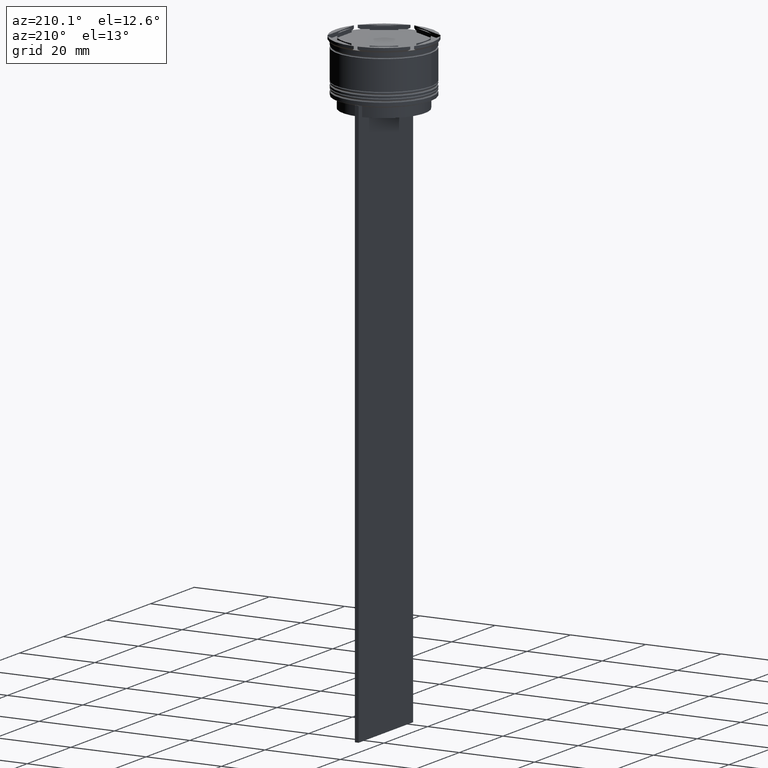
[diagram: clean part render]
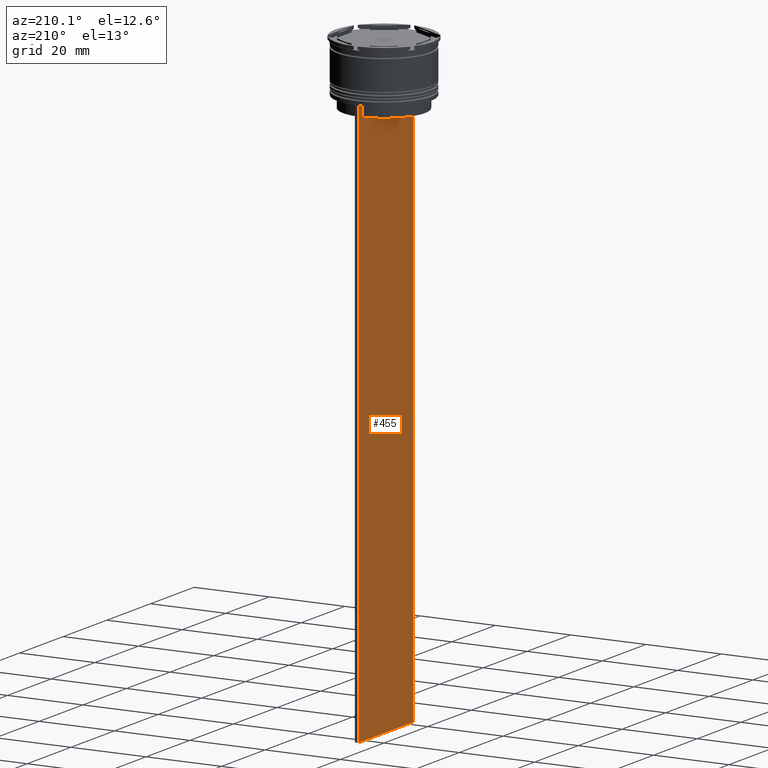
[diagram: same view with one face highlighted and labeled with its STEP entity id]
A machine part, auxiliary view. The second image highlights one B-rep face of the part: STEP entity #455.
In plain terms, the highlighted planar face has unit normal (-1, 0, 0).
Its self-contained STEP definition (entity closure, byte-faithful):
#56 = DIRECTION ( 'NONE',  ( 0.000000000000000000, -1.000000000000000000, 0.000000000000000000 ) ) ;
#68 = LINE ( 'NONE', #1382, #1889 ) ;
#139 = VERTEX_POINT ( 'NONE', #386 ) ;
#158 = CARTESIAN_POINT ( 'NONE',  ( -0.5000000000000000000, -10.88852607105296322, 0.000000000000000000 ) ) ;
#192 = DIRECTION ( 'NONE',  ( 0.000000000000000000, -1.000000000000000000, 0.000000000000000000 ) ) ;
#199 = VERTEX_POINT ( 'NONE', #1731 ) ;
#204 = LINE ( 'NONE', #1758, #2179 ) ;
#258 = ORIENTED_EDGE ( 'NONE', *, *, #861, .F. ) ;
#274 = CARTESIAN_POINT ( 'NONE',  ( -0.5000000000000000000, -10.88852607105296322, -14.50000000000000000 ) ) ;
#327 = EDGE_CURVE ( 'NONE', #2698, #577, #669, .T. ) ;
#332 = DIRECTION ( 'NONE',  ( -1.000000000000000000, 0.000000000000000000, 0.000000000000000000 ) ) ;
#346 = DIRECTION ( 'NONE',  ( 0.000000000000000000, 0.000000000000000000, -1.000000000000000000 ) ) ;
#376 = CARTESIAN_POINT ( 'NONE',  ( -0.5000000000000000000, 12.38991525394746773, -14.00000000000000178 ) ) ;
#381 = DIRECTION ( 'NONE',  ( 0.000000000000000000, -1.000000000000000000, 0.000000000000000000 ) ) ;
#386 = CARTESIAN_POINT ( 'NONE',  ( -0.5000000000000000000, -12.38991525394746773, -14.00000000000000178 ) ) ;
#404 = ORIENTED_EDGE ( 'NONE', *, *, #2284, .F. ) ;
#422 = CARTESIAN_POINT ( 'NONE',  ( -0.5000000000000000000, 12.50000000000000711, -163.9999999999999716 ) ) ;
#437 = CARTESIAN_POINT ( 'NONE',  ( -0.5000000000000000000, -12.49999999999999289, -163.9999999999999716 ) ) ;
#455 = ADVANCED_FACE ( 'NONE', ( #974 ), #1448, .T. ) ;
#484 = ORIENTED_EDGE ( 'NONE', *, *, #1510, .F. ) ;
#492 = EDGE_CURVE ( 'NONE', #818, #577, #566, .T. ) ;
#524 = B_SPLINE_CURVE_WITH_KNOTS ( 'NONE', 3,
 ( #1955, #1312, #1301, #1533 ),
 .UNSPECIFIED., .F., .F.,
 ( 4, 4 ),
 ( 0.05041323384703226551, 0.05112713601261605068 ),
 .UNSPECIFIED. ) ;
#543 = LINE ( 'NONE', #1661, #1036 ) ;
#566 = LINE ( 'NONE', #2116, #1745 ) ;
#567 = CARTESIAN_POINT ( 'NONE',  ( -0.5000000000000000000, 11.22219891375843304, -14.16667035472756808 ) ) ;
#577 = VERTEX_POINT ( 'NONE', #422 ) ;
#580 = CARTESIAN_POINT ( 'NONE',  ( -0.5000000000000000000, -12.49999999999999289, -14.00000000000000178 ) ) ;
#611 = LINE ( 'NONE', #158, #1295 ) ;
#669 = LINE ( 'NONE', #917, #1789 ) ;
#682 = EDGE_CURVE ( 'NONE', #884, #808, #1087, .T. ) ;
#725 = VECTOR ( 'NONE', #1316, 1000.000000000000000 ) ;
#758 = CARTESIAN_POINT ( 'NONE',  ( -0.5000000000000000000, -12.49999999999999289, -14.00000000000000178 ) ) ;
#794 = VERTEX_POINT ( 'NONE', #274 ) ;
#808 = VERTEX_POINT ( 'NONE', #2210 ) ;
#818 = VERTEX_POINT ( 'NONE', #2016 ) ;
#840 = CARTESIAN_POINT ( 'NONE',  ( -0.5000000000000000000, -11.38902980942626719, -14.00000000000000178 ) ) ;
#861 = EDGE_CURVE ( 'NONE', #199, #2698, #1390, .T. ) ;
#884 = VERTEX_POINT ( 'NONE', #376 ) ;
#906 = VERTEX_POINT ( 'NONE', #2163 ) ;
#917 = CARTESIAN_POINT ( 'NONE',  ( -0.5000000000000000000, -12.49999999999999289, -163.9999999999999716 ) ) ;
#945 = DIRECTION ( 'NONE',  ( 0.000000000000000000, 1.000000000000000000, 0.000000000000000000 ) ) ;
#948 = ORIENTED_EDGE ( 'NONE', *, *, #1768, .F. ) ;
#955 = AXIS2_PLACEMENT_3D ( 'NONE', #1859, #332, #1188 ) ;
#973 = EDGE_CURVE ( 'NONE', #906, #2428, #1287, .T. ) ;
#974 = FACE_OUTER_BOUND ( 'NONE', #983, .T. ) ;
#983 = EDGE_LOOP ( 'NONE', ( #948, #2195, #1165, #1152, #2132, #258, #1866, #484, #2388, #404, #2208, #2121 ) ) ;
#1020 = DIRECTION ( 'NONE',  ( 0.000000000000000000, -1.000000000000000000, 0.000000000000000000 ) ) ;
#1036 = VECTOR ( 'NONE', #2306, 1000.000000000000000 ) ;
#1084 = CARTESIAN_POINT ( 'NONE',  ( -0.5000000000000000000, 10.90000000000000213, -17.00000000000000000 ) ) ;
#1087 = LINE ( 'NONE', #580, #1792 ) ;
#1152 = ORIENTED_EDGE ( 'NONE', *, *, #492, .T. ) ;
#1165 = ORIENTED_EDGE ( 'NONE', *, *, #1839, .F. ) ;
#1188 = DIRECTION ( 'NONE',  ( 0.000000000000000000, 0.000000000000000000, 1.000000000000000000 ) ) ;
#1217 = CARTESIAN_POINT ( 'NONE',  ( -0.5000000000000000000, 11.38902980942626719, -14.00000000000000178 ) ) ;
#1240 = VECTOR ( 'NONE', #1020, 1000.000000000000000 ) ;
#1287 = LINE ( 'NONE', #1084, #725 ) ;
#1295 = VECTOR ( 'NONE', #2404, 1000.000000000000000 ) ;
#1301 = CARTESIAN_POINT ( 'NONE',  ( -0.5000000000000000000, -11.22219891450652973, -14.16667035398018903 ) ) ;
#1312 = CARTESIAN_POINT ( 'NONE',  ( -0.5000000000000000000, -11.05536450423839234, -14.33333718996393102 ) ) ;
#1313 = EDGE_CURVE ( 'NONE', #139, #199, #2577, .T. ) ;
#1316 = DIRECTION ( 'NONE',  ( 0.000000000000000000, -1.000000000000000000, 0.000000000000000000 ) ) ;
#1378 = VECTOR ( 'NONE', #1928, 1000.000000000000000 ) ;
#1382 = CARTESIAN_POINT ( 'NONE',  ( -0.5000000000000000000, -12.49999999999999289, -14.00000000000000178 ) ) ;
#1390 = LINE ( 'NONE', #2339, #1378 ) ;
#1391 = EDGE_CURVE ( 'NONE', #794, #2243, #524, .T. ) ;
#1448 = PLANE ( 'NONE',  #955 ) ;
#1510 = EDGE_CURVE ( 'NONE', #2243, #139, #68, .T. ) ;
#1533 = CARTESIAN_POINT ( 'NONE',  ( -0.5000000000000000000, -11.38902980942626719, -14.00000000000000178 ) ) ;
#1661 = CARTESIAN_POINT ( 'NONE',  ( -0.5000000000000000000, 10.88852607105296322, 0.000000000000000000 ) ) ;
#1731 = CARTESIAN_POINT ( 'NONE',  ( -0.5000000000000000000, -12.49999999999999289, -14.00000000000000178 ) ) ;
#1745 = VECTOR ( 'NONE', #346, 1000.000000000000000 ) ;
#1758 = CARTESIAN_POINT ( 'NONE',  ( -0.5000000000000000000, -12.49999999999999289, -14.00000000000000178 ) ) ;
#1768 = EDGE_CURVE ( 'NONE', #808, #2674, #2430, .T. ) ;
#1789 = VECTOR ( 'NONE', #945, 1000.000000000000000 ) ;
#1792 = VECTOR ( 'NONE', #381, 1000.000000000000000 ) ;
#1839 = EDGE_CURVE ( 'NONE', #818, #884, #204, .T. ) ;
#1859 = CARTESIAN_POINT ( 'NONE',  ( -0.5000000000000000000, -12.49999999999999289, 11.01999200639360765 ) ) ;
#1866 = ORIENTED_EDGE ( 'NONE', *, *, #1313, .F. ) ;
#1889 = VECTOR ( 'NONE', #56, 1000.000000000000000 ) ;
#1928 = DIRECTION ( 'NONE',  ( 0.000000000000000000, 0.000000000000000000, -1.000000000000000000 ) ) ;
#1955 = CARTESIAN_POINT ( 'NONE',  ( -0.5000000000000000000, -10.88852607105296322, -14.50000000000000000 ) ) ;
#2016 = CARTESIAN_POINT ( 'NONE',  ( -0.5000000000000000000, 12.50000000000000711, -14.00000000000000178 ) ) ;
#2116 = CARTESIAN_POINT ( 'NONE',  ( -0.5000000000000000000, 12.50000000000000711, 11.01999200639360765 ) ) ;
#2121 = ORIENTED_EDGE ( 'NONE', *, *, #2349, .F. ) ;
#2132 = ORIENTED_EDGE ( 'NONE', *, *, #327, .F. ) ;
#2163 = CARTESIAN_POINT ( 'NONE',  ( -0.5000000000000000000, 10.88852607105296144, -17.00000000000000000 ) ) ;
#2179 = VECTOR ( 'NONE', #192, 1000.000000000000000 ) ;
#2195 = ORIENTED_EDGE ( 'NONE', *, *, #682, .F. ) ;
#2208 = ORIENTED_EDGE ( 'NONE', *, *, #973, .F. ) ;
#2210 = CARTESIAN_POINT ( 'NONE',  ( -0.5000000000000000000, 11.38902980942626719, -14.00000000000000178 ) ) ;
#2243 = VERTEX_POINT ( 'NONE', #840 ) ;
#2284 = EDGE_CURVE ( 'NONE', #2428, #794, #611, .T. ) ;
#2306 = DIRECTION ( 'NONE',  ( 0.000000000000000000, 0.000000000000000000, -1.000000000000000000 ) ) ;
#2317 = CARTESIAN_POINT ( 'NONE',  ( -0.5000000000000000000, 10.88852607105296322, -14.50000000000000000 ) ) ;
#2339 = CARTESIAN_POINT ( 'NONE',  ( -0.5000000000000000000, -12.49999999999999289, 11.01999200639360765 ) ) ;
#2349 = EDGE_CURVE ( 'NONE', #2674, #906, #543, .T. ) ;
#2363 = CARTESIAN_POINT ( 'NONE',  ( -0.5000000000000000000, 11.05536450345590538, -14.33333719074559376 ) ) ;
#2388 = ORIENTED_EDGE ( 'NONE', *, *, #1391, .F. ) ;
#2404 = DIRECTION ( 'NONE',  ( -0.000000000000000000, -0.000000000000000000, 1.000000000000000000 ) ) ;
#2428 = VERTEX_POINT ( 'NONE', #2755 ) ;
#2430 = B_SPLINE_CURVE_WITH_KNOTS ( 'NONE', 3,
 ( #1217, #567, #2363, #2317 ),
 .UNSPECIFIED., .F., .F.,
 ( 4, 4 ),
 ( 0.01935560801904634073, 0.02006307108468586772 ),
 .UNSPECIFIED. ) ;
#2577 = LINE ( 'NONE', #758, #1240 ) ;
#2674 = VERTEX_POINT ( 'NONE', #2678 ) ;
#2678 = CARTESIAN_POINT ( 'NONE',  ( -0.5000000000000000000, 10.88852607105296322, -14.50000000000000000 ) ) ;
#2698 = VERTEX_POINT ( 'NONE', #437 ) ;
#2755 = CARTESIAN_POINT ( 'NONE',  ( -0.5000000000000000000, -10.88852607105296144, -17.00000000000000000 ) ) ;